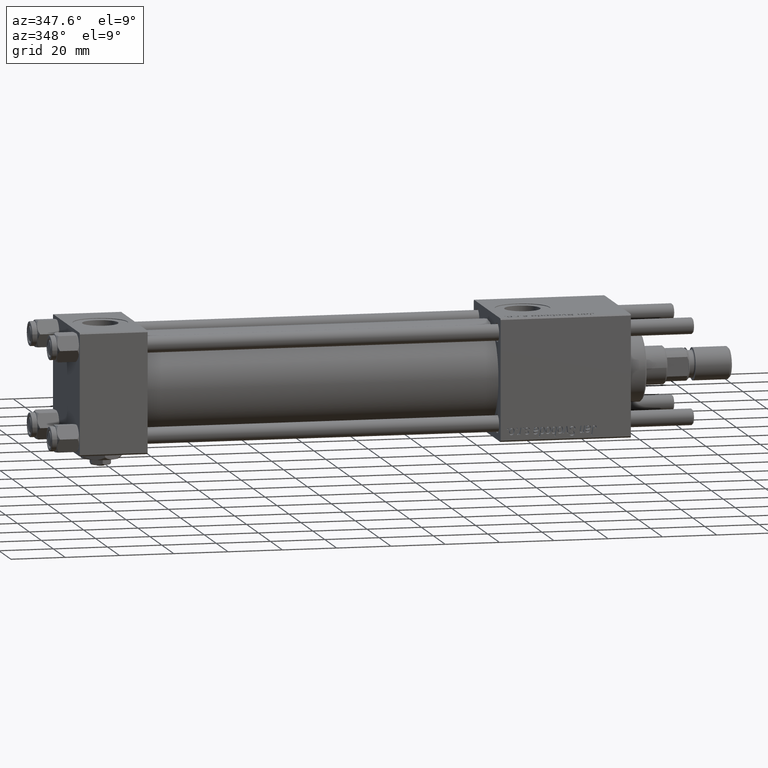
[diagram: clean part render]
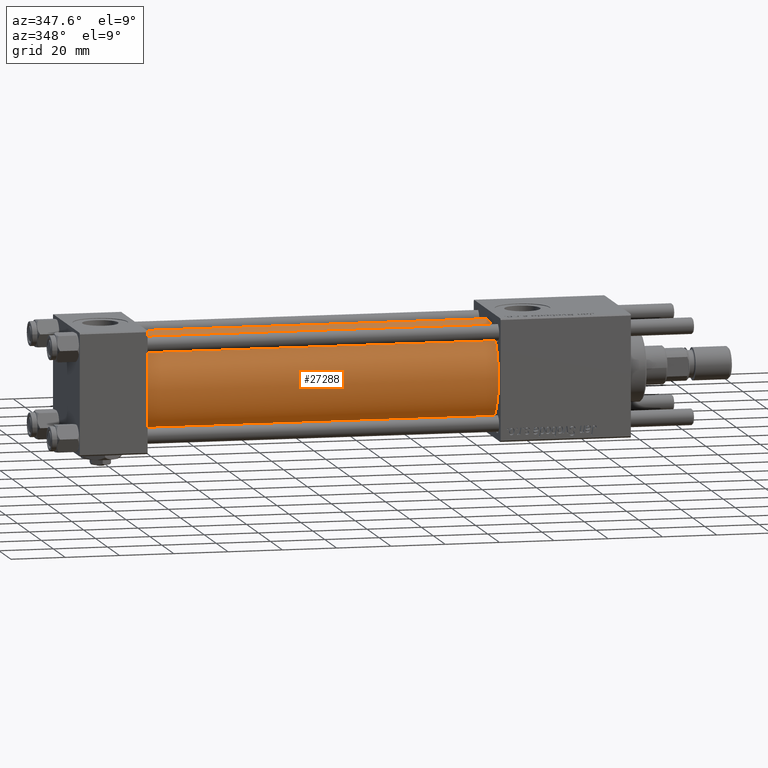
[diagram: same view with one face highlighted and labeled with its STEP entity id]
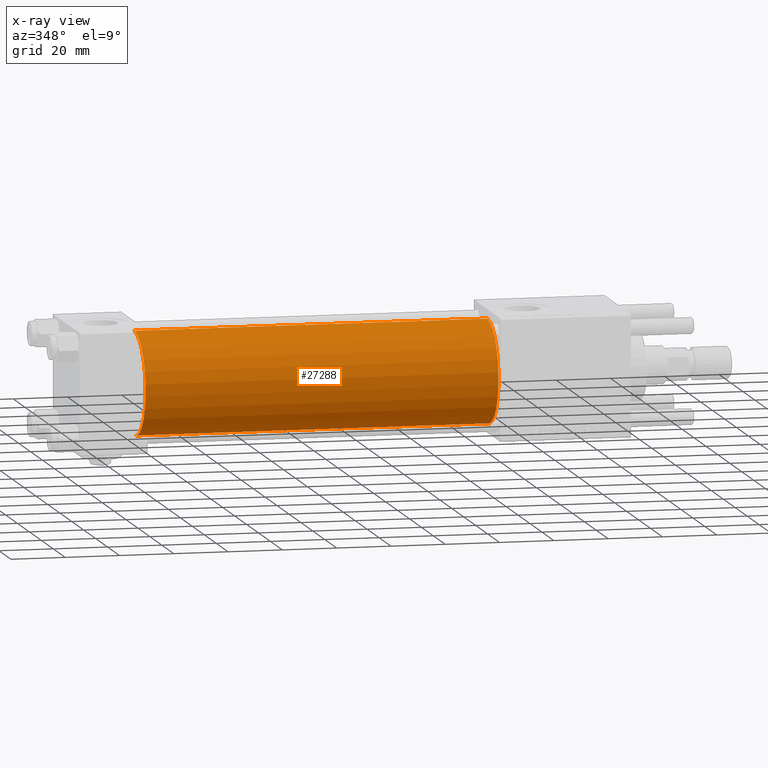
[diagram: x-ray of the same camera — body ghosted, the highlighted face saturated]
A machine part, auxiliary view. The second image highlights one B-rep face of the part: STEP entity #27288.
The next image is the same camera in x-ray: the body ghosted, the highlighted face saturated — about 0% of this face is hidden behind the body in this view.
In plain terms, the highlighted cylindrical surface (partial cylindrical patch) has radius 19 mm, axis along (-1, -0, -0).
Its self-contained STEP definition (entity closure, byte-faithful):
#352 = VERTEX_POINT ( 'NONE', #11292 ) ;
#489 = ORIENTED_EDGE ( 'NONE', *, *, #961, .T. ) ;
#961 = EDGE_CURVE ( 'NONE', #352, #46019, #5503, .T. ) ;
#5171 = CIRCLE ( 'NONE', #56626, 19.00000000000000000 ) ;
#5503 = CIRCLE ( 'NONE', #21673, 19.00000000000000000 ) ;
#6968 = CARTESIAN_POINT ( 'NONE',  ( 24.99999999999999289, -2.752562955852396712E-16, -19.00000000000000000 ) ) ;
#6985 = DIRECTION ( 'NONE',  ( 0.000000000000000000, 0.000000000000000000, 1.000000000000000000 ) ) ;
#9877 = CARTESIAN_POINT ( 'NONE',  ( 155.0000000000000000, -2.752562955852396712E-16, -19.00000000000000000 ) ) ;
#10650 = VECTOR ( 'NONE', #22731, 1000.000000000000000 ) ;
#11081 = VERTEX_POINT ( 'NONE', #15087 ) ;
#11292 = CARTESIAN_POINT ( 'NONE',  ( 24.99999999999999289, -2.602085213965210642E-15, 19.00000000000000000 ) ) ;
#11448 = CARTESIAN_POINT ( 'NONE',  ( 24.99999999999999289, -2.602085213965210642E-15, 0.000000000000000000 ) ) ;
#12919 = VERTEX_POINT ( 'NONE', #57719 ) ;
#14534 = CYLINDRICAL_SURFACE ( 'NONE', #41300, 19.00000000000000000 ) ;
#15087 = CARTESIAN_POINT ( 'NONE',  ( 155.0000000000000000, -2.602085213965210642E-15, 19.00000000000000000 ) ) ;
#17527 = EDGE_CURVE ( 'NONE', #11081, #352, #40649, .T. ) ;
#17995 = CARTESIAN_POINT ( 'NONE',  ( 155.0000000000000000, -2.602085213965210642E-15, 19.00000000000000000 ) ) ;
#21673 = AXIS2_PLACEMENT_3D ( 'NONE', #11448, #47842, #6985 ) ;
#22731 = DIRECTION ( 'NONE',  ( -1.000000000000000000, -0.000000000000000000, -0.000000000000000000 ) ) ;
#24491 = VECTOR ( 'NONE', #50745, 1000.000000000000000 ) ;
#27173 = ORIENTED_EDGE ( 'NONE', *, *, #44114, .F. ) ;
#27288 = ADVANCED_FACE ( 'NONE', ( #36892 ), #14534, .T. ) ;
#27750 = EDGE_LOOP ( 'NONE', ( #27173, #58877, #52882, #489 ) ) ;
#30292 = CARTESIAN_POINT ( 'NONE',  ( 155.0000000000000000, -2.602085213965210642E-15, 0.000000000000000000 ) ) ;
#30372 = EDGE_CURVE ( 'NONE', #11081, #12919, #5171, .T. ) ;
#32112 = DIRECTION ( 'NONE',  ( 0.000000000000000000, 0.000000000000000000, 1.000000000000000000 ) ) ;
#36892 = FACE_OUTER_BOUND ( 'NONE', #27750, .T. ) ;
#40649 = LINE ( 'NONE', #17995, #10650 ) ;
#41300 = AXIS2_PLACEMENT_3D ( 'NONE', #55690, #50618, #32112 ) ;
#44114 = EDGE_CURVE ( 'NONE', #12919, #46019, #55221, .T. ) ;
#46019 = VERTEX_POINT ( 'NONE', #6968 ) ;
#47842 = DIRECTION ( 'NONE',  ( 1.000000000000000000, -0.000000000000000000, 0.000000000000000000 ) ) ;
#48500 = DIRECTION ( 'NONE',  ( 1.000000000000000000, 0.000000000000000000, 0.000000000000000000 ) ) ;
#50618 = DIRECTION ( 'NONE',  ( -1.000000000000000000, -0.000000000000000000, -0.000000000000000000 ) ) ;
#50745 = DIRECTION ( 'NONE',  ( -1.000000000000000000, -0.000000000000000000, -0.000000000000000000 ) ) ;
#52682 = DIRECTION ( 'NONE',  ( 0.000000000000000000, 0.000000000000000000, -1.000000000000000000 ) ) ;
#52882 = ORIENTED_EDGE ( 'NONE', *, *, #17527, .T. ) ;
#55221 = LINE ( 'NONE', #9877, #24491 ) ;
#55690 = CARTESIAN_POINT ( 'NONE',  ( 155.0000000000000000, -2.602085213965210642E-15, 0.000000000000000000 ) ) ;
#56626 = AXIS2_PLACEMENT_3D ( 'NONE', #30292, #48500, #52682 ) ;
#57719 = CARTESIAN_POINT ( 'NONE',  ( 155.0000000000000000, -2.752562955852396712E-16, -19.00000000000000000 ) ) ;
#58877 = ORIENTED_EDGE ( 'NONE', *, *, #30372, .F. ) ;